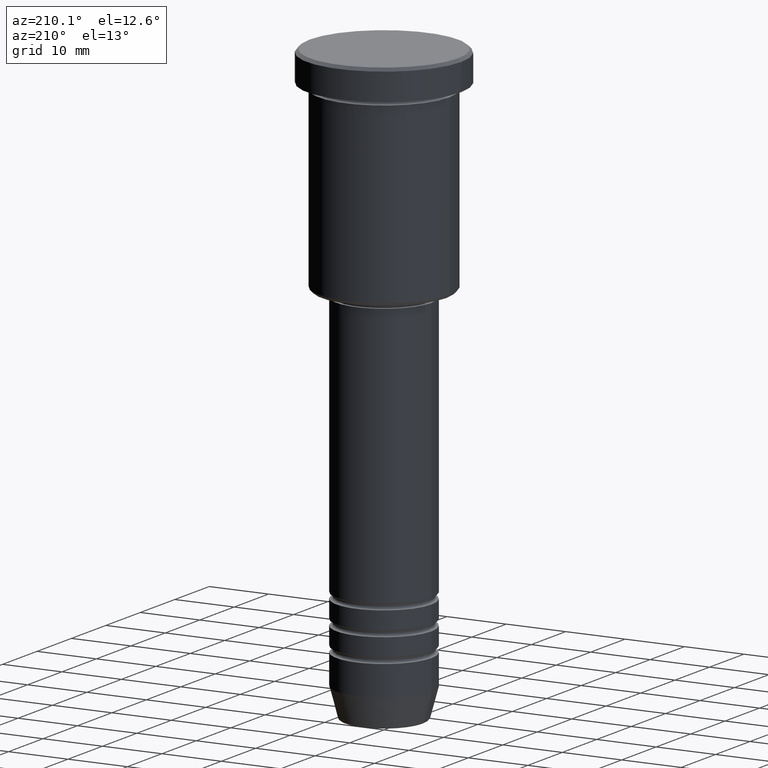
[diagram: clean part render]
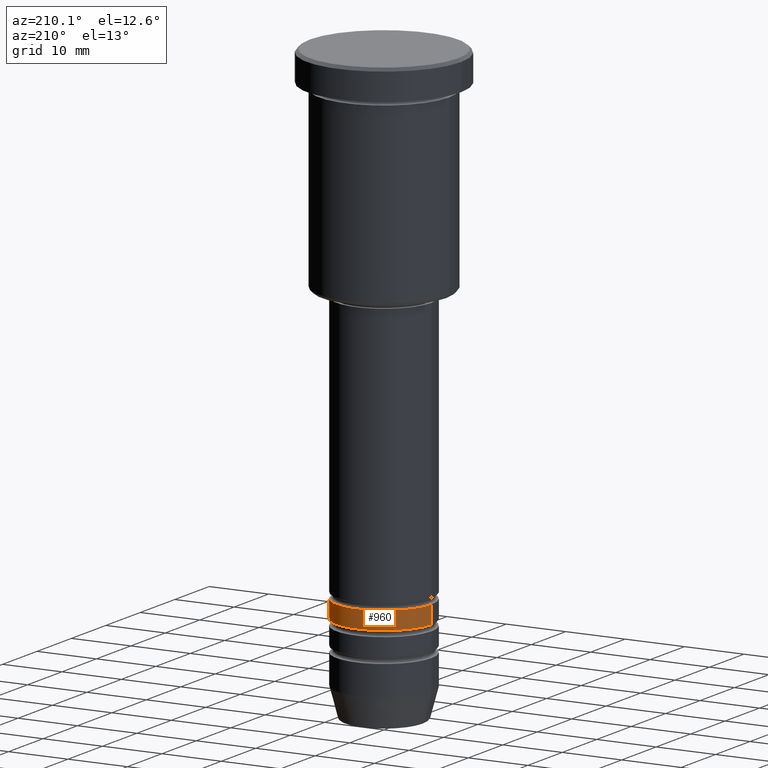
[diagram: same view with one face highlighted and labeled with its STEP entity id]
A machine part, auxiliary view. The second image highlights one B-rep face of the part: STEP entity #960.
In plain terms, the highlighted cylindrical surface (partial cylindrical patch) has radius 8 mm, axis along (-0, -0, 1).
Its self-contained STEP definition (entity closure, byte-faithful):
#29 = DIRECTION ( 'NONE',  ( -0.000000000000000000, -0.000000000000000000, 1.000000000000000000 ) ) ;
#62 = EDGE_LOOP ( 'NONE', ( #1075, #461, #482, #897 ) ) ;
#74 = CARTESIAN_POINT ( 'NONE',  ( -8.000000000000000000, 9.797174393178827630E-16, -81.99999999999998579 ) ) ;
#91 = DIRECTION ( 'NONE',  ( -0.000000000000000000, -0.000000000000000000, 1.000000000000000000 ) ) ;
#104 = VERTEX_POINT ( 'NONE', #234 ) ;
#145 = DIRECTION ( 'NONE',  ( -0.000000000000000000, -0.000000000000000000, 1.000000000000000000 ) ) ;
#146 = EDGE_CURVE ( 'NONE', #104, #337, #673, .T. ) ;
#173 = EDGE_CURVE ( 'NONE', #447, #104, #1014, .T. ) ;
#180 = DIRECTION ( 'NONE',  ( -0.000000000000000000, -0.000000000000000000, 1.000000000000000000 ) ) ;
#234 = CARTESIAN_POINT ( 'NONE',  ( 8.000000000000000000, 0.000000000000000000, -81.99999999999998579 ) ) ;
#267 = DIRECTION ( 'NONE',  ( 1.000000000000000000, 0.000000000000000000, 0.000000000000000000 ) ) ;
#306 = CARTESIAN_POINT ( 'NONE',  ( -8.000000000000003553, 9.797174393178829602E-16, -84.99999999999998579 ) ) ;
#334 = AXIS2_PLACEMENT_3D ( 'NONE', #484, #145, #843 ) ;
#337 = VERTEX_POINT ( 'NONE', #74 ) ;
#349 = VECTOR ( 'NONE', #180, 1000.000000000000000 ) ;
#403 = EDGE_CURVE ( 'NONE', #903, #337, #913, .T. ) ;
#442 = CARTESIAN_POINT ( 'NONE',  ( 0.000000000000000000, 0.000000000000000000, -81.99999999999998579 ) ) ;
#447 = VERTEX_POINT ( 'NONE', #540 ) ;
#461 = ORIENTED_EDGE ( 'NONE', *, *, #403, .T. ) ;
#482 = ORIENTED_EDGE ( 'NONE', *, *, #146, .F. ) ;
#484 = CARTESIAN_POINT ( 'NONE',  ( 0.000000000000000000, 0.000000000000000000, 0.000000000000000000 ) ) ;
#486 = DIRECTION ( 'NONE',  ( -0.000000000000000000, -0.000000000000000000, 1.000000000000000000 ) ) ;
#523 = VECTOR ( 'NONE', #486, 1000.000000000000000 ) ;
#540 = CARTESIAN_POINT ( 'NONE',  ( 8.000000000000003553, 0.000000000000000000, -84.99999999999998579 ) ) ;
#591 = AXIS2_PLACEMENT_3D ( 'NONE', #442, #91, #267 ) ;
#627 = CARTESIAN_POINT ( 'NONE',  ( -8.000000000000001776, 9.797174393178827630E-16, 0.000000000000000000 ) ) ;
#673 = CIRCLE ( 'NONE', #591, 8.000000000000000000 ) ;
#677 = CARTESIAN_POINT ( 'NONE',  ( 8.000000000000001776, 0.000000000000000000, 0.000000000000000000 ) ) ;
#831 = CARTESIAN_POINT ( 'NONE',  ( 0.000000000000000000, 0.000000000000000000, -84.99999999999998579 ) ) ;
#843 = DIRECTION ( 'NONE',  ( 1.000000000000000000, 0.000000000000000000, 0.000000000000000000 ) ) ;
#854 = EDGE_CURVE ( 'NONE', #447, #903, #1113, .T. ) ;
#897 = ORIENTED_EDGE ( 'NONE', *, *, #173, .F. ) ;
#903 = VERTEX_POINT ( 'NONE', #306 ) ;
#913 = LINE ( 'NONE', #627, #349 ) ;
#942 = FACE_OUTER_BOUND ( 'NONE', #62, .T. ) ;
#960 = ADVANCED_FACE ( 'NONE', ( #942 ), #1138, .T. ) ;
#1014 = LINE ( 'NONE', #677, #523 ) ;
#1050 = AXIS2_PLACEMENT_3D ( 'NONE', #831, #29, #1114 ) ;
#1075 = ORIENTED_EDGE ( 'NONE', *, *, #854, .T. ) ;
#1113 = CIRCLE ( 'NONE', #1050, 8.000000000000003553 ) ;
#1114 = DIRECTION ( 'NONE',  ( 1.000000000000000000, 0.000000000000000000, 0.000000000000000000 ) ) ;
#1138 = CYLINDRICAL_SURFACE ( 'NONE', #334, 8.000000000000001776 ) ;